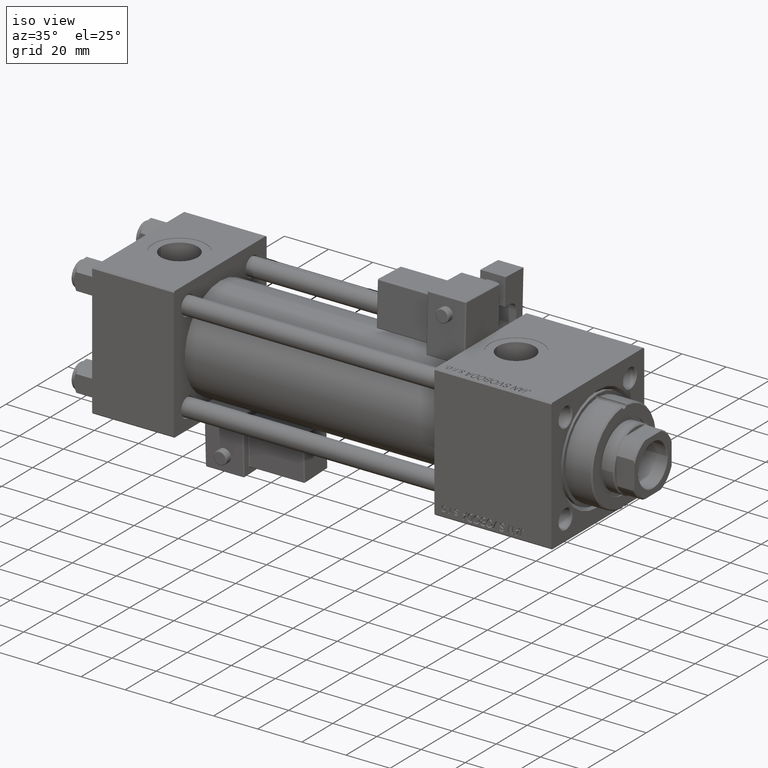
[diagram: clean part render]
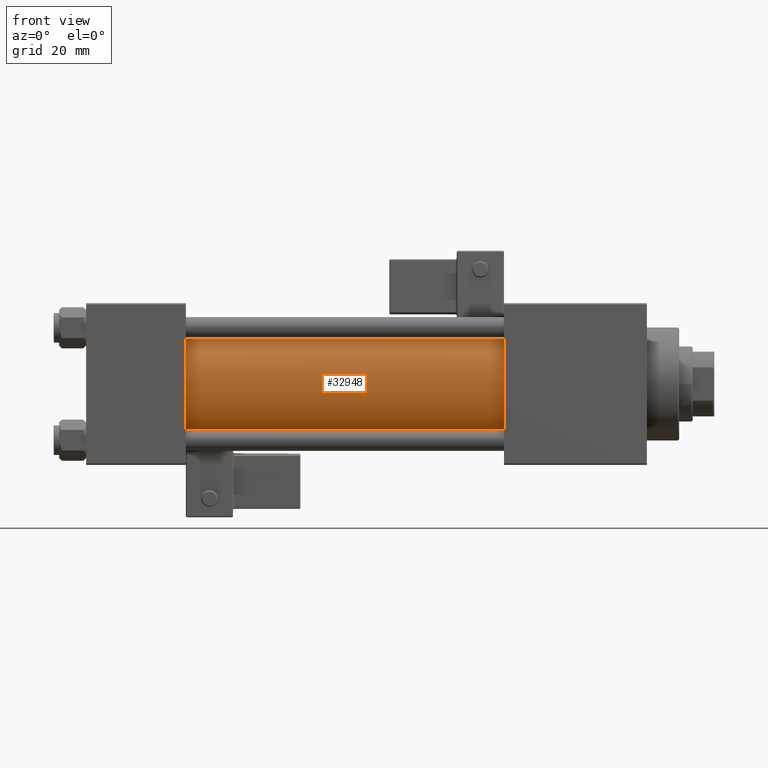
[diagram: tour spotlight — one face highlighted and labeled with its STEP entity id]
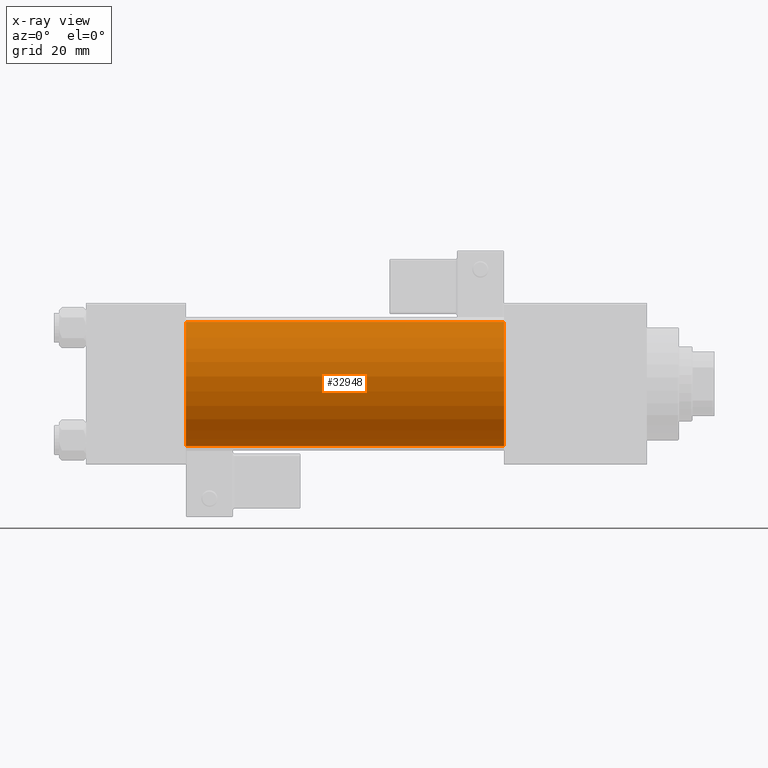
[diagram: x-ray of the same camera — body ghosted, this tour face saturated]
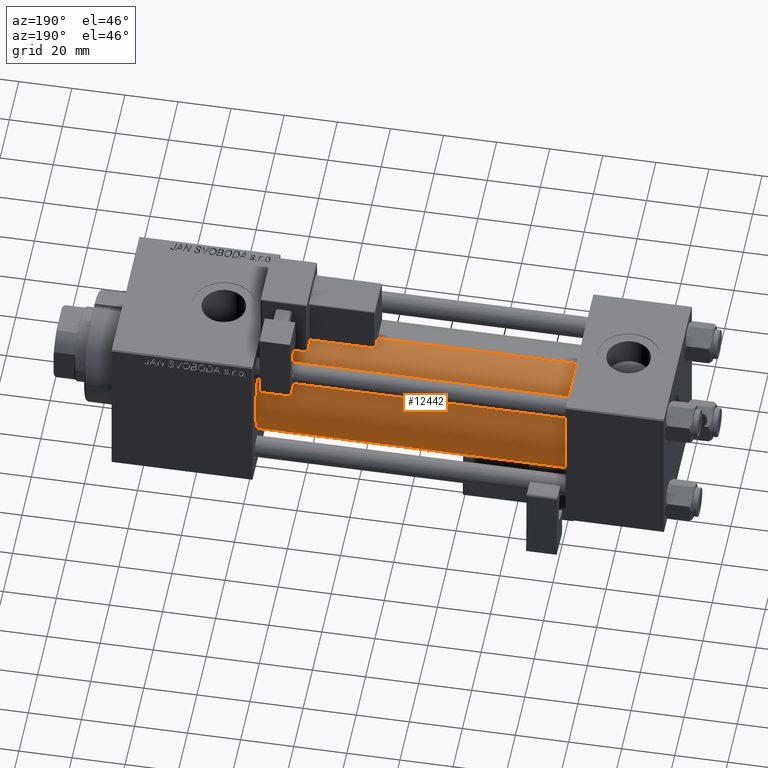
[diagram: tour spotlight — one face highlighted and labeled with its STEP entity id]
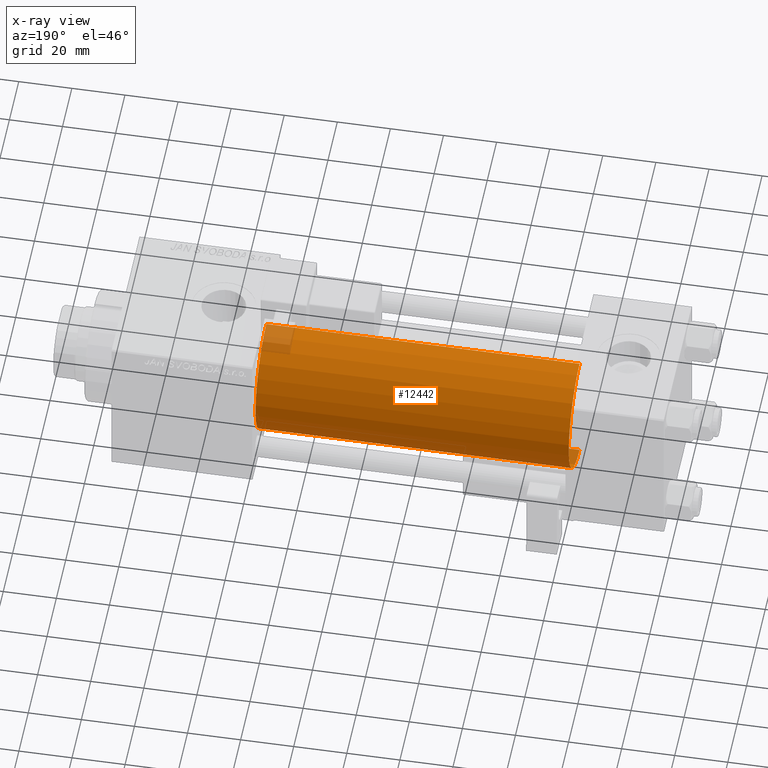
[diagram: x-ray of the same camera — body ghosted, this tour face saturated]
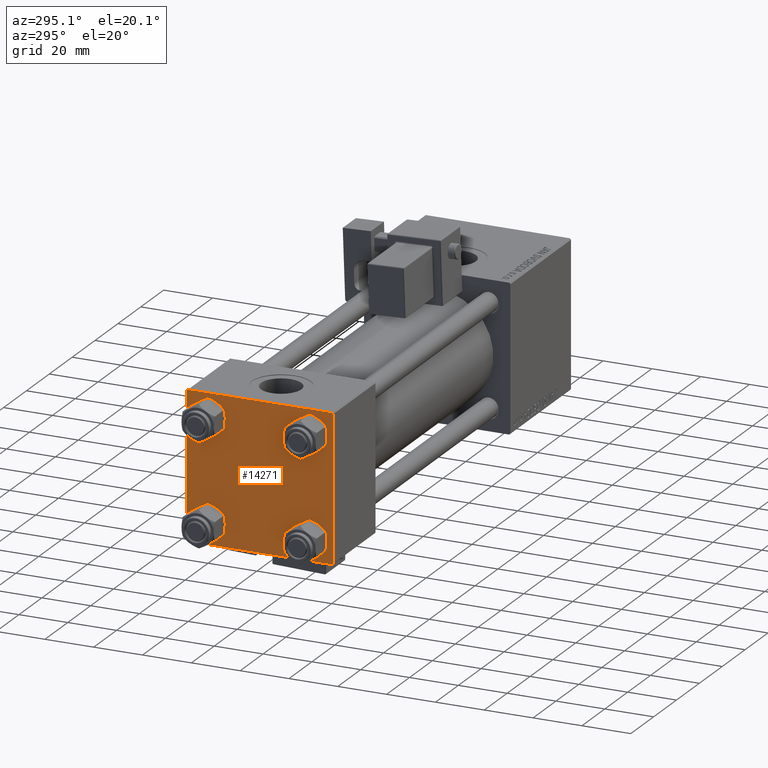
[diagram: tour spotlight — one face highlighted and labeled with its STEP entity id]
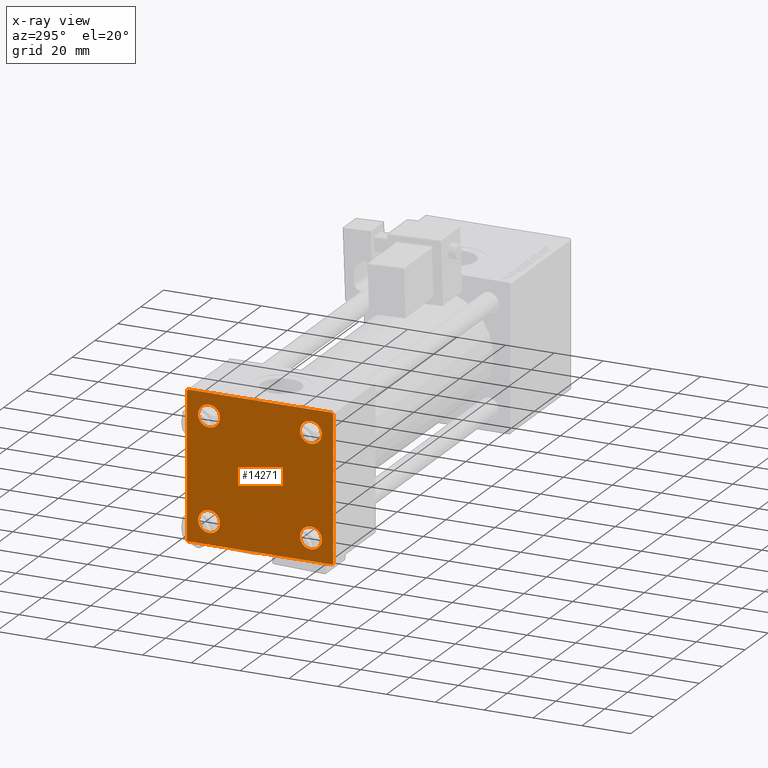
[diagram: x-ray of the same camera — body ghosted, this tour face saturated]
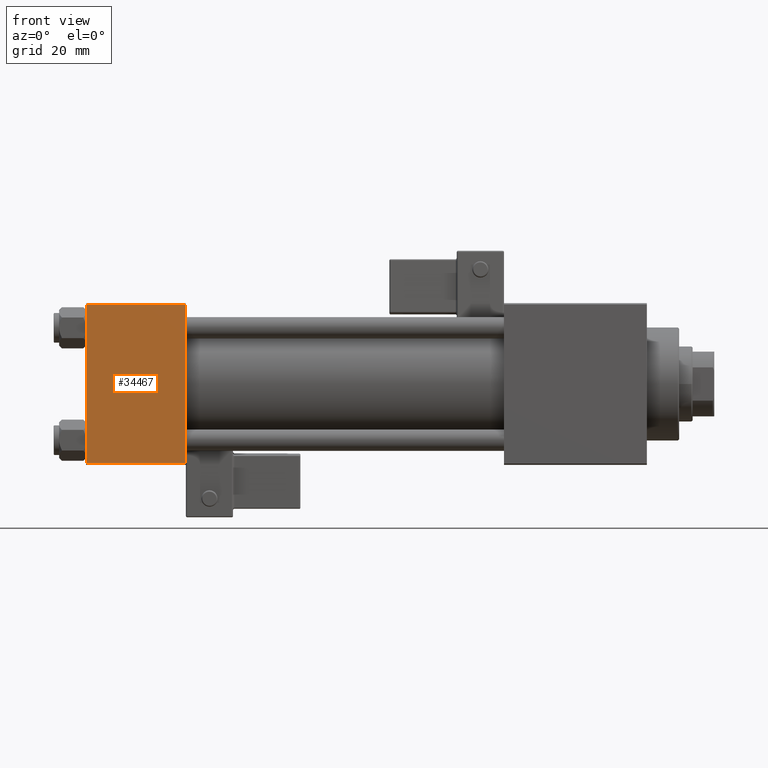
[diagram: tour spotlight — one face highlighted and labeled with its STEP entity id]
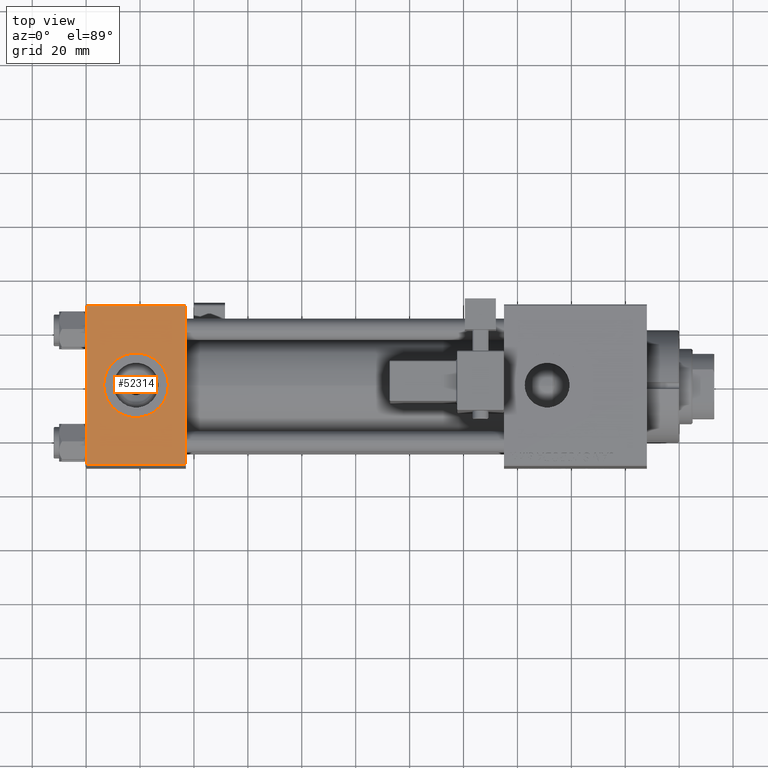
[diagram: tour spotlight — one face highlighted and labeled with its STEP entity id]
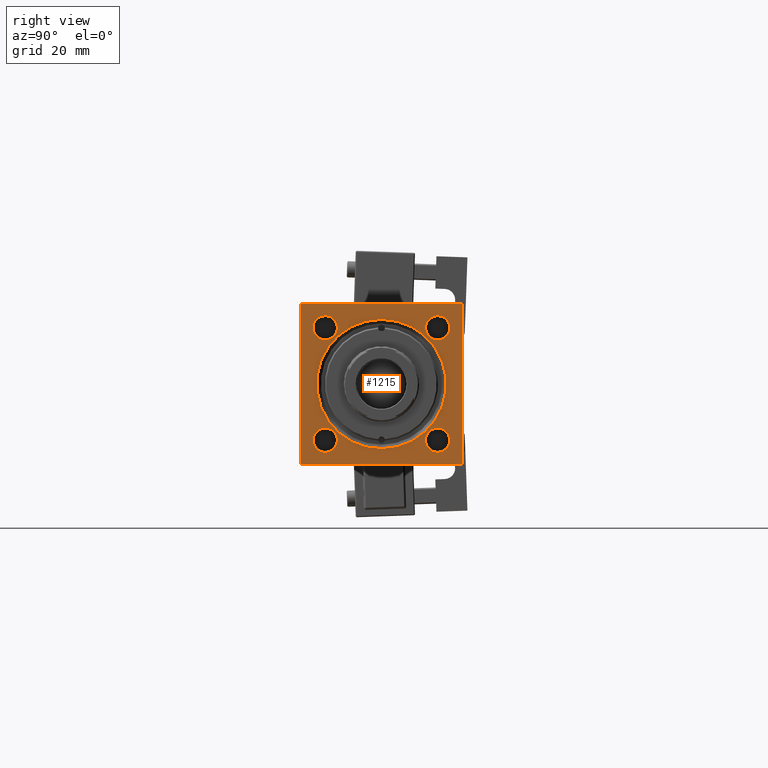
[diagram: tour spotlight — one face highlighted and labeled with its STEP entity id]
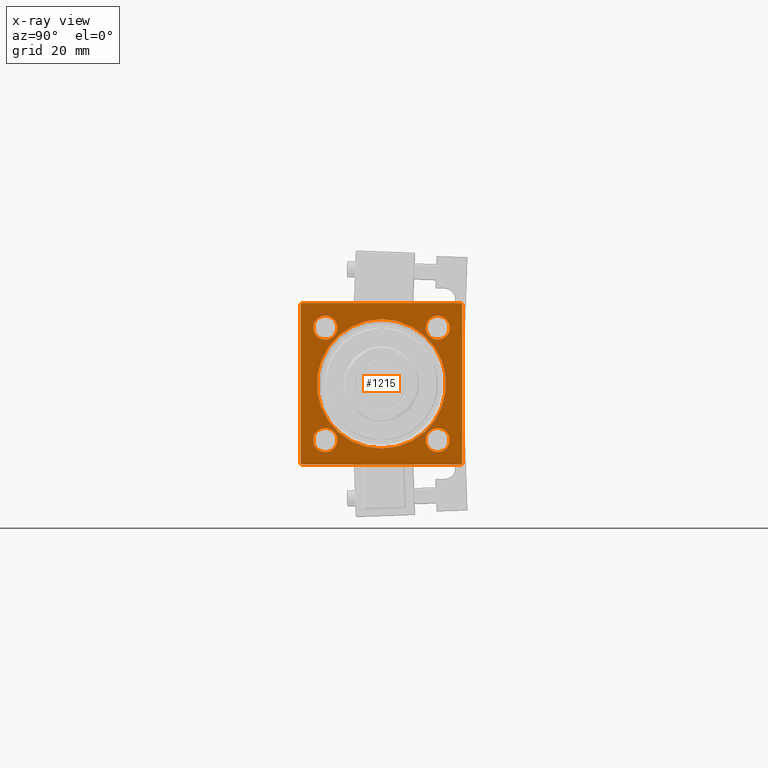
[diagram: x-ray of the same camera — body ghosted, this tour face saturated]
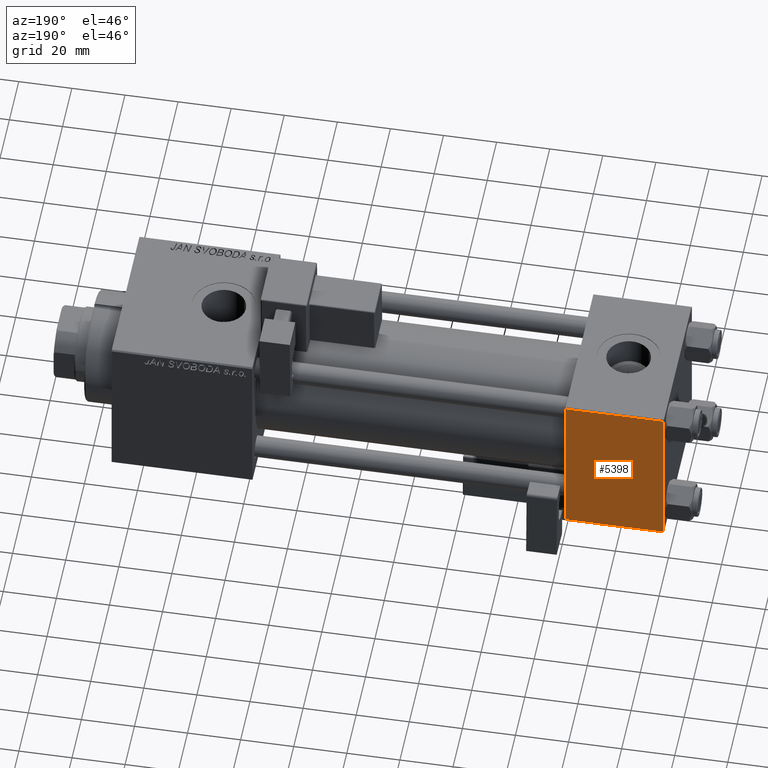
[diagram: tour spotlight — one face highlighted and labeled with its STEP entity id]
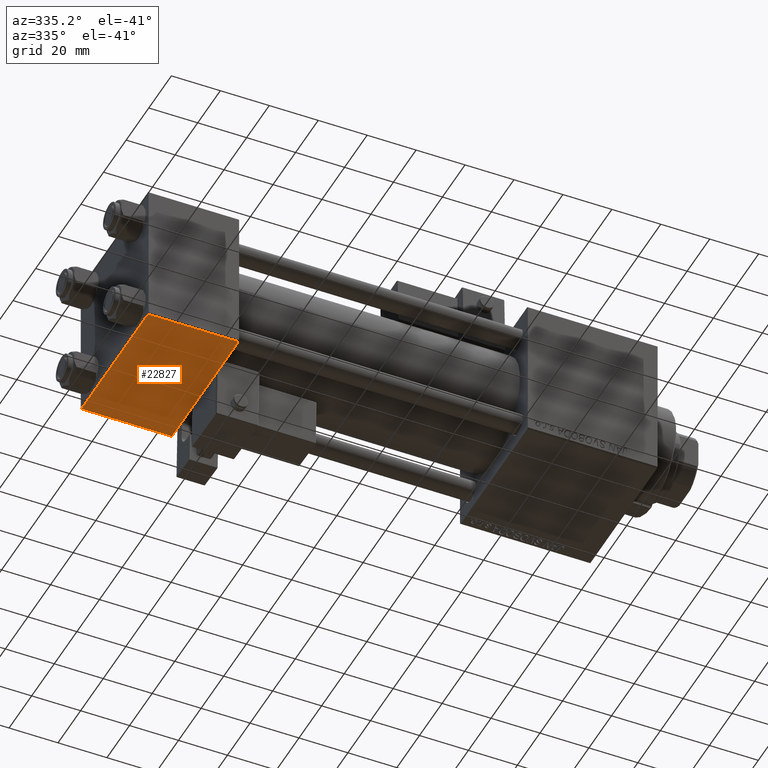
[diagram: tour spotlight — one face highlighted and labeled with its STEP entity id]
A machine part: a face-by-face anatomy tour. The part has 1341 B-rep faces; the first image is the clean iso view, then the 8 largest visible faces are spotlighted one at a time (largest first), each with its STEP entity span.

Face 1 — front view, entity #32948. An x-ray twin of the same camera follows (body ghosted, this face saturated) — the face is partly hidden behind the body. In plain terms, the highlighted cylindrical surface (partial cylindrical patch) has radius 23 mm, axis along (-1, -0, -0).
Definition (entity closure, byte-faithful):
#477 = CIRCLE ( 'NONE', #30874, 23.00000000000000000 ) ;
#1869 = EDGE_CURVE ( 'NONE', #48475, #43932, #477, .T. ) ;
#2634 = DIRECTION ( 'NONE',  ( -1.000000000000000000, -0.000000000000000000, -0.000000000000000000 ) ) ;
#3577 = CARTESIAN_POINT ( 'NONE',  ( 155.0000000000000000, -2.602085213965210642E-15, 0.000000000000000000 ) ) ;
#3728 = VERTEX_POINT ( 'NONE', #25554 ) ;
#7401 = LINE ( 'NONE', #10938, #35405 ) ;
#7868 = CIRCLE ( 'NONE', #41705, 23.00000000000000000 ) ;
#9134 = CARTESIAN_POINT ( 'NONE',  ( 155.0000000000000000, -2.602085213965210642E-15, 0.000000000000000000 ) ) ;
#10767 = EDGE_CURVE ( 'NONE', #48475, #3728, #7401, .T. ) ;
#10938 = CARTESIAN_POINT ( 'NONE',  ( 155.0000000000000000, -2.602085213965210642E-15, 23.00000000000000000 ) ) ;
#15333 = CARTESIAN_POINT ( 'NONE',  ( 155.0000000000000000, 2.146024240737016609E-16, -23.00000000000000000 ) ) ;
#15524 = DIRECTION ( 'NONE',  ( -1.000000000000000000, -0.000000000000000000, -0.000000000000000000 ) ) ;
#16310 = CARTESIAN_POINT ( 'NONE',  ( 37.00000000000000711, -2.602085213965210642E-15, 0.000000000000000000 ) ) ;
#17137 = ORIENTED_EDGE ( 'NONE', *, *, #10767, .T. ) ;
#19210 = LINE ( 'NONE', #47785, #53338 ) ;
#19356 = DIRECTION ( 'NONE',  ( -1.000000000000000000, -0.000000000000000000, -0.000000000000000000 ) ) ;
#19872 = DIRECTION ( 'NONE',  ( 0.000000000000000000, 0.000000000000000000, 1.000000000000000000 ) ) ;
#20888 = ORIENTED_EDGE ( 'NONE', *, *, #49720, .T. ) ;
#23596 = EDGE_LOOP ( 'NONE', ( #24928, #43247, #17137, #20888 ) ) ;
#24928 = ORIENTED_EDGE ( 'NONE', *, *, #33194, .F. ) ;
#25554 = CARTESIAN_POINT ( 'NONE',  ( 37.00000000000000711, -2.602085213965210642E-15, 23.00000000000000000 ) ) ;
#30874 = AXIS2_PLACEMENT_3D ( 'NONE', #9134, #50462, #38503 ) ;
#32948 = ADVANCED_FACE ( 'NONE', ( #43293 ), #37291, .T. ) ;
#33194 = EDGE_CURVE ( 'NONE', #43932, #36819, #19210, .T. ) ;
#35405 = VECTOR ( 'NONE', #19356, 1000.000000000000000 ) ;
#36819 = VERTEX_POINT ( 'NONE', #43658 ) ;
#36999 = DIRECTION ( 'NONE',  ( 0.000000000000000000, 0.000000000000000000, 1.000000000000000000 ) ) ;
#37291 = CYLINDRICAL_SURFACE ( 'NONE', #38599, 23.00000000000000000 ) ;
#38503 = DIRECTION ( 'NONE',  ( 0.000000000000000000, 0.000000000000000000, -1.000000000000000000 ) ) ;
#38599 = AXIS2_PLACEMENT_3D ( 'NONE', #3577, #15524, #19872 ) ;
#41705 = AXIS2_PLACEMENT_3D ( 'NONE', #16310, #48956, #36999 ) ;
#43247 = ORIENTED_EDGE ( 'NONE', *, *, #1869, .F. ) ;
#43293 = FACE_OUTER_BOUND ( 'NONE', #23596, .T. ) ;
#43658 = CARTESIAN_POINT ( 'NONE',  ( 37.00000000000000711, 2.146024240737016609E-16, -23.00000000000000000 ) ) ;
#43932 = VERTEX_POINT ( 'NONE', #15333 ) ;
#47785 = CARTESIAN_POINT ( 'NONE',  ( 155.0000000000000000, 2.146024240737016609E-16, -23.00000000000000000 ) ) ;
#48475 = VERTEX_POINT ( 'NONE', #53659 ) ;
#48956 = DIRECTION ( 'NONE',  ( 1.000000000000000000, -0.000000000000000000, 0.000000000000000000 ) ) ;
#49720 = EDGE_CURVE ( 'NONE', #3728, #36819, #7868, .T. ) ;
#50462 = DIRECTION ( 'NONE',  ( 1.000000000000000000, 0.000000000000000000, 0.000000000000000000 ) ) ;
#53338 = VECTOR ( 'NONE', #2634, 1000.000000000000000 ) ;
#53659 = CARTESIAN_POINT ( 'NONE',  ( 155.0000000000000000, -2.602085213965210642E-15, 23.00000000000000000 ) ) ;

Face 2 — auxiliary view, entity #12442. An x-ray twin of the same camera follows (body ghosted, this face saturated) — the face is partly hidden behind the body. In plain terms, the highlighted cylindrical surface (partial cylindrical patch) has radius 23 mm, axis along (-1, -0, -0).
Definition (entity closure, byte-faithful):
#2634 = DIRECTION ( 'NONE',  ( -1.000000000000000000, -0.000000000000000000, -0.000000000000000000 ) ) ;
#3728 = VERTEX_POINT ( 'NONE', #25554 ) ;
#7401 = LINE ( 'NONE', #10938, #35405 ) ;
#8824 = DIRECTION ( 'NONE',  ( 0.000000000000000000, 0.000000000000000000, 1.000000000000000000 ) ) ;
#10767 = EDGE_CURVE ( 'NONE', #48475, #3728, #7401, .T. ) ;
#10938 = CARTESIAN_POINT ( 'NONE',  ( 155.0000000000000000, -2.602085213965210642E-15, 23.00000000000000000 ) ) ;
#11543 = CARTESIAN_POINT ( 'NONE',  ( 155.0000000000000000, -2.602085213965210642E-15, 0.000000000000000000 ) ) ;
#11969 = ORIENTED_EDGE ( 'NONE', *, *, #28719, .F. ) ;
#12442 = ADVANCED_FACE ( 'NONE', ( #15339 ), #19954, .T. ) ;
#15108 = ORIENTED_EDGE ( 'NONE', *, *, #33194, .T. ) ;
#15333 = CARTESIAN_POINT ( 'NONE',  ( 155.0000000000000000, 2.146024240737016609E-16, -23.00000000000000000 ) ) ;
#15339 = FACE_OUTER_BOUND ( 'NONE', #48219, .T. ) ;
#15449 = EDGE_CURVE ( 'NONE', #36819, #3728, #31209, .T. ) ;
#16401 = DIRECTION ( 'NONE',  ( 0.000000000000000000, 0.000000000000000000, -1.000000000000000000 ) ) ;
#19210 = LINE ( 'NONE', #47785, #53338 ) ;
#19356 = DIRECTION ( 'NONE',  ( -1.000000000000000000, -0.000000000000000000, -0.000000000000000000 ) ) ;
#19954 = CYLINDRICAL_SURFACE ( 'NONE', #51101, 23.00000000000000000 ) ;
#22025 = ORIENTED_EDGE ( 'NONE', *, *, #10767, .F. ) ;
#24681 = CIRCLE ( 'NONE', #51588, 23.00000000000000000 ) ;
#25554 = CARTESIAN_POINT ( 'NONE',  ( 37.00000000000000711, -2.602085213965210642E-15, 23.00000000000000000 ) ) ;
#28719 = EDGE_CURVE ( 'NONE', #43932, #48475, #24681, .T. ) ;
#31209 = CIRCLE ( 'NONE', #52064, 23.00000000000000000 ) ;
#31711 = ORIENTED_EDGE ( 'NONE', *, *, #15449, .T. ) ;
#33194 = EDGE_CURVE ( 'NONE', #43932, #36819, #19210, .T. ) ;
#35094 = DIRECTION ( 'NONE',  ( 1.000000000000000000, -0.000000000000000000, 0.000000000000000000 ) ) ;
#35405 = VECTOR ( 'NONE', #19356, 1000.000000000000000 ) ;
#36819 = VERTEX_POINT ( 'NONE', #43658 ) ;
#36827 = CARTESIAN_POINT ( 'NONE',  ( 155.0000000000000000, -2.602085213965210642E-15, 0.000000000000000000 ) ) ;
#37092 = DIRECTION ( 'NONE',  ( 1.000000000000000000, 0.000000000000000000, 0.000000000000000000 ) ) ;
#43658 = CARTESIAN_POINT ( 'NONE',  ( 37.00000000000000711, 2.146024240737016609E-16, -23.00000000000000000 ) ) ;
#43932 = VERTEX_POINT ( 'NONE', #15333 ) ;
#45809 = CARTESIAN_POINT ( 'NONE',  ( 37.00000000000000711, -2.602085213965210642E-15, 0.000000000000000000 ) ) ;
#47785 = CARTESIAN_POINT ( 'NONE',  ( 155.0000000000000000, 2.146024240737016609E-16, -23.00000000000000000 ) ) ;
#47996 = DIRECTION ( 'NONE',  ( 0.000000000000000000, 0.000000000000000000, 1.000000000000000000 ) ) ;
#48219 = EDGE_LOOP ( 'NONE', ( #11969, #15108, #31711, #22025 ) ) ;
#48475 = VERTEX_POINT ( 'NONE', #53659 ) ;
#51101 = AXIS2_PLACEMENT_3D ( 'NONE', #11543, #52347, #47996 ) ;
#51588 = AXIS2_PLACEMENT_3D ( 'NONE', #36827, #37092, #16401 ) ;
#52064 = AXIS2_PLACEMENT_3D ( 'NONE', #45809, #35094, #8824 ) ;
#52347 = DIRECTION ( 'NONE',  ( -1.000000000000000000, -0.000000000000000000, -0.000000000000000000 ) ) ;
#53338 = VECTOR ( 'NONE', #2634, 1000.000000000000000 ) ;
#53659 = CARTESIAN_POINT ( 'NONE',  ( 155.0000000000000000, -2.602085213965210642E-15, 23.00000000000000000 ) ) ;

Face 3 — auxiliary view, entity #14271. An x-ray twin of the same camera follows (body ghosted, this face saturated) — the face is partly hidden behind the body. In plain terms, the highlighted planar face has unit normal (-1, 0, 0).
Definition (entity closure, byte-faithful):
#172 = LINE ( 'NONE', #439, #30890 ) ;
#439 = CARTESIAN_POINT ( 'NONE',  ( 0.000000000000000000, -29.75000000000001066, -29.75000000000001066 ) ) ;
#467 = EDGE_CURVE ( 'NONE', #36690, #19186, #9039, .T. ) ;
#692 = LINE ( 'NONE', #46127, #30483 ) ;
#1161 = VERTEX_POINT ( 'NONE', #4503 ) ;
#1415 = ORIENTED_EDGE ( 'NONE', *, *, #43634, .T. ) ;
#1784 = CARTESIAN_POINT ( 'NONE',  ( 0.000000000000000000, -29.49999999999998579, 29.99999999999999289 ) ) ;
#1808 = VERTEX_POINT ( 'NONE', #15380 ) ;
#2245 = DIRECTION ( 'NONE',  ( 1.000000000000000000, -0.000000000000000000, 0.000000000000000000 ) ) ;
#2268 = ORIENTED_EDGE ( 'NONE', *, *, #19548, .T. ) ;
#2605 = VECTOR ( 'NONE', #7754, 1000.000000000000114 ) ;
#2944 = ORIENTED_EDGE ( 'NONE', *, *, #49935, .T. ) ;
#3197 = VECTOR ( 'NONE', #34207, 1000.000000000000000 ) ;
#3942 = VECTOR ( 'NONE', #27418, 1000.000000000000114 ) ;
#4197 = CARTESIAN_POINT ( 'NONE',  ( 0.000000000000000000, 29.99999999999999289, 29.50000000000000000 ) ) ;
#4503 = CARTESIAN_POINT ( 'NONE',  ( 0.000000000000000000, -30.00000000000000000, -29.50000000000001776 ) ) ;
#4848 = EDGE_CURVE ( 'NONE', #11709, #13324, #7300, .T. ) ;
#4955 = ORIENTED_EDGE ( 'NONE', *, *, #7833, .T. ) ;
#6226 = FACE_BOUND ( 'NONE', #28078, .T. ) ;
#6483 = CARTESIAN_POINT ( 'NONE',  ( 0.000000000000000000, 0.000000000000000000, 0.000000000000000000 ) ) ;
#7022 = CARTESIAN_POINT ( 'NONE',  ( -0.000000000000000000, -29.74999999999999645, 29.74999999999999645 ) ) ;
#7300 = LINE ( 'NONE', #7022, #3942 ) ;
#7506 = DIRECTION ( 'NONE',  ( 1.000000000000000000, -0.000000000000000000, 0.000000000000000000 ) ) ;
#7754 = DIRECTION ( 'NONE',  ( 0.000000000000000000, 0.7071067811865474617, -0.7071067811865474617 ) ) ;
#7833 = EDGE_CURVE ( 'NONE', #36309, #36690, #8659, .T. ) ;
#8257 = VECTOR ( 'NONE', #46561, 999.9999999999998863 ) ;
#8486 = CARTESIAN_POINT ( 'NONE',  ( 0.000000000000000000, 20.84999999999999787, -20.85000000000000142 ) ) ;
#8659 = LINE ( 'NONE', #17609, #3197 ) ;
#9039 = LINE ( 'NONE', #17445, #8257 ) ;
#10822 = EDGE_CURVE ( 'NONE', #26495, #22233, #44971, .T. ) ;
#10851 = EDGE_CURVE ( 'NONE', #14777, #28040, #29345, .T. ) ;
#11203 = CARTESIAN_POINT ( 'NONE',  ( 0.000000000000000000, 20.84999999999999787, -20.85000000000000142 ) ) ;
#11305 = CIRCLE ( 'NONE', #18247, 4.500000000000017764 ) ;
#11327 = DIRECTION ( 'NONE',  ( 1.000000000000000000, -0.000000000000000000, 0.000000000000000000 ) ) ;
#11709 = VERTEX_POINT ( 'NONE', #14154 ) ;
#12525 = ORIENTED_EDGE ( 'NONE', *, *, #12810, .T. ) ;
#12532 = EDGE_LOOP ( 'NONE', ( #48579, #34796 ) ) ;
#12617 = VERTEX_POINT ( 'NONE', #22641 ) ;
#12810 = EDGE_CURVE ( 'NONE', #28040, #14777, #35448, .T. ) ;
#13078 = DIRECTION ( 'NONE',  ( 1.000000000000000000, -0.000000000000000000, 0.000000000000000000 ) ) ;
#13324 = VERTEX_POINT ( 'NONE', #1784 ) ;
#13860 = EDGE_LOOP ( 'NONE', ( #14463, #12525 ) ) ;
#14154 = CARTESIAN_POINT ( 'NONE',  ( 0.000000000000000000, -30.00000000000000000, 29.49999999999999289 ) ) ;
#14271 = ADVANCED_FACE ( 'NONE', ( #43471, #14354, #19514, #6226, #22794 ), #47551, .T. ) ;
#14354 = FACE_BOUND ( 'NONE', #12532, .T. ) ;
#14403 = VECTOR ( 'NONE', #40988, 1000.000000000000000 ) ;
#14463 = ORIENTED_EDGE ( 'NONE', *, *, #10851, .T. ) ;
#14593 = DIRECTION ( 'NONE',  ( 0.000000000000000000, 0.000000000000000000, 1.000000000000000000 ) ) ;
#14777 = VERTEX_POINT ( 'NONE', #42744 ) ;
#15380 = CARTESIAN_POINT ( 'NONE',  ( 0.000000000000000000, -20.84999999999999076, -25.35000000000002274 ) ) ;
#15724 = CARTESIAN_POINT ( 'NONE',  ( 0.000000000000000000, 20.84999999999999787, -25.35000000000001918 ) ) ;
#16120 = ORIENTED_EDGE ( 'NONE', *, *, #16471, .T. ) ;
#16355 = CARTESIAN_POINT ( 'NONE',  ( 0.000000000000000000, -20.84999999999999076, 20.85000000000000497 ) ) ;
#16471 = EDGE_CURVE ( 'NONE', #22841, #36309, #41729, .T. ) ;
#16989 = EDGE_CURVE ( 'NONE', #19186, #23930, #30752, .T. ) ;
#17078 = DIRECTION ( 'NONE',  ( 1.000000000000000000, -0.000000000000000000, 0.000000000000000000 ) ) ;
#17156 = CARTESIAN_POINT ( 'NONE',  ( 0.000000000000000000, -20.84999999999999076, 16.34999999999998721 ) ) ;
#17200 = AXIS2_PLACEMENT_3D ( 'NONE', #8486, #50078, #25603 ) ;
#17337 = VERTEX_POINT ( 'NONE', #18909 ) ;
#17445 = CARTESIAN_POINT ( 'NONE',  ( 0.000000000000000000, 29.74999999999957723, -29.75000000000040501 ) ) ;
#17609 = CARTESIAN_POINT ( 'NONE',  ( 0.000000000000000000, 29.99999999999999289, 30.00000000000000000 ) ) ;
#18247 = AXIS2_PLACEMENT_3D ( 'NONE', #36942, #28768, #53799 ) ;
#18909 = CARTESIAN_POINT ( 'NONE',  ( 0.000000000000000000, -20.84999999999999076, -16.34999999999998721 ) ) ;
#19186 = VERTEX_POINT ( 'NONE', #33386 ) ;
#19514 = FACE_BOUND ( 'NONE', #13860, .T. ) ;
#19548 = EDGE_CURVE ( 'NONE', #12617, #52154, #52103, .T. ) ;
#20849 = CARTESIAN_POINT ( 'NONE',  ( 0.000000000000000000, 29.99999999999999289, 30.00000000000000000 ) ) ;
#20867 = ORIENTED_EDGE ( 'NONE', *, *, #10822, .T. ) ;
#21498 = ORIENTED_EDGE ( 'NONE', *, *, #467, .T. ) ;
#21515 = DIRECTION ( 'NONE',  ( 0.000000000000000000, 0.000000000000000000, 1.000000000000000000 ) ) ;
#21967 = CARTESIAN_POINT ( 'NONE',  ( 0.000000000000000000, -20.84999999999999076, -20.85000000000000497 ) ) ;
#22233 = VERTEX_POINT ( 'NONE', #17156 ) ;
#22641 = CARTESIAN_POINT ( 'NONE',  ( 0.000000000000000000, 20.84999999999999787, 16.34999999999998366 ) ) ;
#22794 = FACE_OUTER_BOUND ( 'NONE', #44522, .T. ) ;
#22841 = VERTEX_POINT ( 'NONE', #53099 ) ;
#22981 = ORIENTED_EDGE ( 'NONE', *, *, #51196, .F. ) ;
#23324 = DIRECTION ( 'NONE',  ( -0.000000000000000000, 0.000000000000000000, 1.000000000000000000 ) ) ;
#23577 = CARTESIAN_POINT ( 'NONE',  ( 0.000000000000000000, 29.99999999999999289, -29.50000000000000000 ) ) ;
#23930 = VERTEX_POINT ( 'NONE', #33502 ) ;
#25199 = DIRECTION ( 'NONE',  ( 0.000000000000000000, -0.7071067811865474617, 0.7071067811865474617 ) ) ;
#25603 = DIRECTION ( 'NONE',  ( 0.000000000000000000, 0.000000000000000000, 1.000000000000000000 ) ) ;
#26495 = VERTEX_POINT ( 'NONE', #38121 ) ;
#26797 = EDGE_LOOP ( 'NONE', ( #20867, #2944 ) ) ;
#27418 = DIRECTION ( 'NONE',  ( -0.000000000000000000, 0.7071067811865474617, 0.7071067811865474617 ) ) ;
#27765 = AXIS2_PLACEMENT_3D ( 'NONE', #33758, #13078, #43249 ) ;
#27803 = CIRCLE ( 'NONE', #27765, 4.500000000000017764 ) ;
#28040 = VERTEX_POINT ( 'NONE', #15724 ) ;
#28078 = EDGE_LOOP ( 'NONE', ( #1415, #2268 ) ) ;
#28440 = DIRECTION ( 'NONE',  ( 0.000000000000000000, 0.000000000000000000, 1.000000000000000000 ) ) ;
#28768 = DIRECTION ( 'NONE',  ( 1.000000000000000000, -0.000000000000000000, 0.000000000000000000 ) ) ;
#29345 = CIRCLE ( 'NONE', #17200, 4.500000000000017764 ) ;
#29523 = DIRECTION ( 'NONE',  ( 0.000000000000000000, 0.000000000000000000, -1.000000000000000000 ) ) ;
#30483 = VECTOR ( 'NONE', #29523, 1000.000000000000000 ) ;
#30752 = LINE ( 'NONE', #39462, #53000 ) ;
#30890 = VECTOR ( 'NONE', #25199, 1000.000000000000114 ) ;
#31768 = EDGE_CURVE ( 'NONE', #1808, #17337, #35083, .T. ) ;
#32953 = DIRECTION ( 'NONE',  ( 1.000000000000000000, -0.000000000000000000, 0.000000000000000000 ) ) ;
#33386 = CARTESIAN_POINT ( 'NONE',  ( 0.000000000000000000, 29.49999999999997868, -30.00000000000000000 ) ) ;
#33502 = CARTESIAN_POINT ( 'NONE',  ( 0.000000000000000000, -29.50000000000000000, -30.00000000000000711 ) ) ;
#33758 = CARTESIAN_POINT ( 'NONE',  ( 0.000000000000000000, -20.84999999999999076, -20.85000000000000497 ) ) ;
#34207 = DIRECTION ( 'NONE',  ( 0.000000000000000000, 0.000000000000000000, -1.000000000000000000 ) ) ;
#34752 = AXIS2_PLACEMENT_3D ( 'NONE', #41215, #7506, #28440 ) ;
#34796 = ORIENTED_EDGE ( 'NONE', *, *, #31768, .T. ) ;
#35083 = CIRCLE ( 'NONE', #36809, 4.500000000000017764 ) ;
#35311 = DIRECTION ( 'NONE',  ( -1.000000000000000000, 0.000000000000000000, -0.000000000000000000 ) ) ;
#35448 = CIRCLE ( 'NONE', #38955, 4.500000000000017764 ) ;
#35887 = EDGE_CURVE ( 'NONE', #23930, #1161, #172, .T. ) ;
#36309 = VERTEX_POINT ( 'NONE', #4197 ) ;
#36690 = VERTEX_POINT ( 'NONE', #23577 ) ;
#36760 = EDGE_CURVE ( 'NONE', #22841, #13324, #45611, .T. ) ;
#36809 = AXIS2_PLACEMENT_3D ( 'NONE', #21967, #17078, #51068 ) ;
#36942 = CARTESIAN_POINT ( 'NONE',  ( 0.000000000000000000, -20.84999999999999076, 20.85000000000000497 ) ) ;
#38121 = CARTESIAN_POINT ( 'NONE',  ( 0.000000000000000000, -20.84999999999999076, 25.35000000000002274 ) ) ;
#38908 = AXIS2_PLACEMENT_3D ( 'NONE', #16355, #32953, #21515 ) ;
#38955 = AXIS2_PLACEMENT_3D ( 'NONE', #11203, #2245, #39510 ) ;
#39006 = AXIS2_PLACEMENT_3D ( 'NONE', #39633, #11327, #14593 ) ;
#39462 = CARTESIAN_POINT ( 'NONE',  ( 0.000000000000000000, 29.99999999999999289, -30.00000000000000000 ) ) ;
#39510 = DIRECTION ( 'NONE',  ( 0.000000000000000000, 0.000000000000000000, 1.000000000000000000 ) ) ;
#39633 = CARTESIAN_POINT ( 'NONE',  ( 0.000000000000000000, 20.84999999999999787, 20.85000000000000142 ) ) ;
#40494 = ORIENTED_EDGE ( 'NONE', *, *, #35887, .T. ) ;
#40988 = DIRECTION ( 'NONE',  ( 0.000000000000000000, -1.000000000000000000, -1.156482317317871725E-16 ) ) ;
#41215 = CARTESIAN_POINT ( 'NONE',  ( 0.000000000000000000, 20.84999999999999787, 20.85000000000000142 ) ) ;
#41729 = LINE ( 'NONE', #53712, #2605 ) ;
#42094 = ORIENTED_EDGE ( 'NONE', *, *, #16989, .T. ) ;
#42495 = CIRCLE ( 'NONE', #39006, 4.500000000000017764 ) ;
#42744 = CARTESIAN_POINT ( 'NONE',  ( 0.000000000000000000, 20.84999999999999787, -16.34999999999998366 ) ) ;
#42823 = ORIENTED_EDGE ( 'NONE', *, *, #4848, .T. ) ;
#43227 = ORIENTED_EDGE ( 'NONE', *, *, #36760, .F. ) ;
#43249 = DIRECTION ( 'NONE',  ( 0.000000000000000000, 0.000000000000000000, 1.000000000000000000 ) ) ;
#43471 = FACE_BOUND ( 'NONE', #26797, .T. ) ;
#43634 = EDGE_CURVE ( 'NONE', #52154, #12617, #42495, .T. ) ;
#44522 = EDGE_LOOP ( 'NONE', ( #4955, #21498, #42094, #40494, #22981, #42823, #43227, #16120 ) ) ;
#44971 = CIRCLE ( 'NONE', #38908, 4.500000000000017764 ) ;
#45492 = EDGE_CURVE ( 'NONE', #17337, #1808, #27803, .T. ) ;
#45611 = LINE ( 'NONE', #20849, #14403 ) ;
#46127 = CARTESIAN_POINT ( 'NONE',  ( 0.000000000000000000, -30.00000000000000000, 29.99999999999999289 ) ) ;
#46561 = DIRECTION ( 'NONE',  ( -0.000000000000000000, -0.7071067811865574537, -0.7071067811865376918 ) ) ;
#47551 = PLANE ( 'NONE',  #48524 ) ;
#48524 = AXIS2_PLACEMENT_3D ( 'NONE', #6483, #35311, #23324 ) ;
#48579 = ORIENTED_EDGE ( 'NONE', *, *, #45492, .T. ) ;
#49935 = EDGE_CURVE ( 'NONE', #22233, #26495, #11305, .T. ) ;
#50078 = DIRECTION ( 'NONE',  ( 1.000000000000000000, -0.000000000000000000, 0.000000000000000000 ) ) ;
#51068 = DIRECTION ( 'NONE',  ( 0.000000000000000000, 0.000000000000000000, 1.000000000000000000 ) ) ;
#51157 = DIRECTION ( 'NONE',  ( 0.000000000000000000, -1.000000000000000000, -1.156482317317871725E-16 ) ) ;
#51196 = EDGE_CURVE ( 'NONE', #11709, #1161, #692, .T. ) ;
#52103 = CIRCLE ( 'NONE', #34752, 4.500000000000017764 ) ;
#52154 = VERTEX_POINT ( 'NONE', #52827 ) ;
#52827 = CARTESIAN_POINT ( 'NONE',  ( 0.000000000000000000, 20.84999999999999787, 25.35000000000001918 ) ) ;
#53000 = VECTOR ( 'NONE', #51157, 1000.000000000000000 ) ;
#53099 = CARTESIAN_POINT ( 'NONE',  ( 0.000000000000000000, 29.49999999999999289, 30.00000000000000000 ) ) ;
#53712 = CARTESIAN_POINT ( 'NONE',  ( 0.000000000000000000, 29.74999999999999645, 29.74999999999999645 ) ) ;
#53799 = DIRECTION ( 'NONE',  ( 0.000000000000000000, 0.000000000000000000, 1.000000000000000000 ) ) ;

Face 4 — front view, entity #34467. In plain terms, the highlighted planar face has unit normal (0, 1, 0).
Definition (entity closure, byte-faithful):
#692 = LINE ( 'NONE', #46127, #30483 ) ;
#1161 = VERTEX_POINT ( 'NONE', #4503 ) ;
#2644 = FACE_OUTER_BOUND ( 'NONE', #7985, .T. ) ;
#3257 = VERTEX_POINT ( 'NONE', #8468 ) ;
#3528 = ORIENTED_EDGE ( 'NONE', *, *, #5610, .T. ) ;
#4503 = CARTESIAN_POINT ( 'NONE',  ( 0.000000000000000000, -30.00000000000000000, -29.50000000000001776 ) ) ;
#5610 = EDGE_CURVE ( 'NONE', #52963, #11709, #34065, .T. ) ;
#7985 = EDGE_LOOP ( 'NONE', ( #28536, #42183, #44781, #3528 ) ) ;
#8468 = CARTESIAN_POINT ( 'NONE',  ( 37.00000000000000000, -30.00000000000000000, -29.50000000000001776 ) ) ;
#9373 = CARTESIAN_POINT ( 'NONE',  ( 37.00000000000000000, -30.00000000000000000, 29.49999999999999289 ) ) ;
#10397 = LINE ( 'NONE', #47923, #50439 ) ;
#10540 = DIRECTION ( 'NONE',  ( 0.000000000000000000, -0.000000000000000000, 1.000000000000000000 ) ) ;
#11709 = VERTEX_POINT ( 'NONE', #14154 ) ;
#13880 = CARTESIAN_POINT ( 'NONE',  ( 37.00000000000000000, -30.00000000000000000, -29.50000000000001776 ) ) ;
#14154 = CARTESIAN_POINT ( 'NONE',  ( 0.000000000000000000, -30.00000000000000000, 29.49999999999999289 ) ) ;
#14601 = PLANE ( 'NONE',  #45576 ) ;
#18683 = CARTESIAN_POINT ( 'NONE',  ( 37.00000000000000000, -30.00000000000000000, 29.99999999999999289 ) ) ;
#20456 = VECTOR ( 'NONE', #25369, 1000.000000000000000 ) ;
#21975 = EDGE_CURVE ( 'NONE', #52963, #3257, #10397, .T. ) ;
#25369 = DIRECTION ( 'NONE',  ( -1.000000000000000000, 0.000000000000000000, 0.000000000000000000 ) ) ;
#28536 = ORIENTED_EDGE ( 'NONE', *, *, #51196, .T. ) ;
#29439 = CARTESIAN_POINT ( 'NONE',  ( 37.00000000000000000, -30.00000000000000000, 29.49999999999999289 ) ) ;
#29523 = DIRECTION ( 'NONE',  ( 0.000000000000000000, 0.000000000000000000, -1.000000000000000000 ) ) ;
#30483 = VECTOR ( 'NONE', #29523, 1000.000000000000000 ) ;
#34065 = LINE ( 'NONE', #29439, #20456 ) ;
#34467 = ADVANCED_FACE ( 'NONE', ( #2644 ), #14601, .F. ) ;
#34565 = LINE ( 'NONE', #13880, #44311 ) ;
#35358 = DIRECTION ( 'NONE',  ( 1.000000000000000000, 0.000000000000000000, 0.000000000000000000 ) ) ;
#35679 = DIRECTION ( 'NONE',  ( 0.000000000000000000, 0.000000000000000000, -1.000000000000000000 ) ) ;
#42183 = ORIENTED_EDGE ( 'NONE', *, *, #45559, .T. ) ;
#44311 = VECTOR ( 'NONE', #35358, 1000.000000000000000 ) ;
#44781 = ORIENTED_EDGE ( 'NONE', *, *, #21975, .F. ) ;
#45559 = EDGE_CURVE ( 'NONE', #1161, #3257, #34565, .T. ) ;
#45576 = AXIS2_PLACEMENT_3D ( 'NONE', #18683, #47796, #10540 ) ;
#46127 = CARTESIAN_POINT ( 'NONE',  ( 0.000000000000000000, -30.00000000000000000, 29.99999999999999289 ) ) ;
#47796 = DIRECTION ( 'NONE',  ( -0.000000000000000000, 1.000000000000000000, 0.000000000000000000 ) ) ;
#47923 = CARTESIAN_POINT ( 'NONE',  ( 37.00000000000000000, -30.00000000000000000, 29.99999999999999289 ) ) ;
#50439 = VECTOR ( 'NONE', #35679, 1000.000000000000000 ) ;
#51196 = EDGE_CURVE ( 'NONE', #11709, #1161, #692, .T. ) ;
#52963 = VERTEX_POINT ( 'NONE', #9373 ) ;

Face 5 — top view, entity #52314. In plain terms, the highlighted planar face has unit normal (0, 0, -1).
Definition (entity closure, byte-faithful):
#1061 = CARTESIAN_POINT ( 'NONE',  ( 30.50000000000000000, -3.469446951953614978E-15, 29.99999999999999645 ) ) ;
#1784 = CARTESIAN_POINT ( 'NONE',  ( 0.000000000000000000, -29.49999999999998579, 29.99999999999999289 ) ) ;
#2655 = ORIENTED_EDGE ( 'NONE', *, *, #36760, .T. ) ;
#2880 = EDGE_CURVE ( 'NONE', #13324, #50256, #11526, .T. ) ;
#3880 = DIRECTION ( 'NONE',  ( 0.000000000000000000, -1.000000000000000000, -1.156482317317871725E-16 ) ) ;
#5035 = ORIENTED_EDGE ( 'NONE', *, *, #2880, .T. ) ;
#5773 = CARTESIAN_POINT ( 'NONE',  ( 37.00000000000000000, -29.49999999999998579, 29.99999999999999289 ) ) ;
#6232 = AXIS2_PLACEMENT_3D ( 'NONE', #38124, #17168, #41918 ) ;
#6817 = DIRECTION ( 'NONE',  ( 1.000000000000000000, 0.000000000000000000, 0.000000000000000000 ) ) ;
#7632 = DIRECTION ( 'NONE',  ( 0.000000000000000000, 0.000000000000000000, 1.000000000000000000 ) ) ;
#8011 = CARTESIAN_POINT ( 'NONE',  ( 6.499999999999997335, -1.999870792976790833E-15, 29.99999999999999645 ) ) ;
#9995 = ORIENTED_EDGE ( 'NONE', *, *, #14875, .F. ) ;
#11526 = LINE ( 'NONE', #11798, #52620 ) ;
#11625 = CARTESIAN_POINT ( 'NONE',  ( 37.00000000000000000, 29.49999999999999289, 30.00000000000000000 ) ) ;
#11798 = CARTESIAN_POINT ( 'NONE',  ( 37.00000000000000000, -29.50000000000000000, 29.99999999999999289 ) ) ;
#13324 = VERTEX_POINT ( 'NONE', #1784 ) ;
#14403 = VECTOR ( 'NONE', #40988, 1000.000000000000000 ) ;
#14613 = LINE ( 'NONE', #48879, #15648 ) ;
#14654 = CIRCLE ( 'NONE', #25121, 12.00000000000000000 ) ;
#14875 = EDGE_CURVE ( 'NONE', #22557, #53675, #14654, .T. ) ;
#15648 = VECTOR ( 'NONE', #43999, 1000.000000000000000 ) ;
#16163 = VERTEX_POINT ( 'NONE', #11625 ) ;
#16826 = DIRECTION ( 'NONE',  ( 1.000000000000000000, 0.000000000000000000, 0.000000000000000000 ) ) ;
#17168 = DIRECTION ( 'NONE',  ( 0.000000000000000000, 1.156482317317871725E-16, -1.000000000000000000 ) ) ;
#18756 = EDGE_CURVE ( 'NONE', #53675, #22557, #21664, .T. ) ;
#20634 = DIRECTION ( 'NONE',  ( 0.000000000000000000, 0.000000000000000000, 1.000000000000000000 ) ) ;
#20706 = PLANE ( 'NONE',  #6232 ) ;
#20849 = CARTESIAN_POINT ( 'NONE',  ( 0.000000000000000000, 29.99999999999999289, 30.00000000000000000 ) ) ;
#21664 = CIRCLE ( 'NONE', #52060, 12.00000000000000000 ) ;
#22557 = VERTEX_POINT ( 'NONE', #8011 ) ;
#22841 = VERTEX_POINT ( 'NONE', #53099 ) ;
#23807 = ORIENTED_EDGE ( 'NONE', *, *, #45918, .T. ) ;
#23864 = EDGE_CURVE ( 'NONE', #16163, #50256, #36793, .T. ) ;
#24570 = DIRECTION ( 'NONE',  ( 1.000000000000000000, 0.000000000000000000, 0.000000000000000000 ) ) ;
#25121 = AXIS2_PLACEMENT_3D ( 'NONE', #28805, #20634, #16826 ) ;
#25337 = FACE_BOUND ( 'NONE', #44965, .T. ) ;
#27161 = EDGE_LOOP ( 'NONE', ( #2655, #5035, #40696, #23807 ) ) ;
#28805 = CARTESIAN_POINT ( 'NONE',  ( 18.50000000000000000, -3.469446951953614978E-15, 29.99999999999999645 ) ) ;
#28848 = ORIENTED_EDGE ( 'NONE', *, *, #18756, .F. ) ;
#32965 = CARTESIAN_POINT ( 'NONE',  ( 37.00000000000000000, 29.99999999999999289, 30.00000000000000000 ) ) ;
#34896 = VECTOR ( 'NONE', #3880, 1000.000000000000000 ) ;
#36760 = EDGE_CURVE ( 'NONE', #22841, #13324, #45611, .T. ) ;
#36793 = LINE ( 'NONE', #32965, #34896 ) ;
#38124 = CARTESIAN_POINT ( 'NONE',  ( 37.00000000000000000, 29.99999999999999289, 30.00000000000000000 ) ) ;
#40696 = ORIENTED_EDGE ( 'NONE', *, *, #23864, .F. ) ;
#40988 = DIRECTION ( 'NONE',  ( 0.000000000000000000, -1.000000000000000000, -1.156482317317871725E-16 ) ) ;
#41918 = DIRECTION ( 'NONE',  ( 0.000000000000000000, 1.000000000000000000, 1.156482317317871725E-16 ) ) ;
#43999 = DIRECTION ( 'NONE',  ( -1.000000000000000000, 0.000000000000000000, 0.000000000000000000 ) ) ;
#44079 = CARTESIAN_POINT ( 'NONE',  ( 18.50000000000000000, -3.469446951953614978E-15, 29.99999999999999645 ) ) ;
#44965 = EDGE_LOOP ( 'NONE', ( #28848, #9995 ) ) ;
#45611 = LINE ( 'NONE', #20849, #14403 ) ;
#45918 = EDGE_CURVE ( 'NONE', #16163, #22841, #14613, .T. ) ;
#48879 = CARTESIAN_POINT ( 'NONE',  ( 0.000000000000000000, 29.49999999999999289, 30.00000000000000000 ) ) ;
#50256 = VERTEX_POINT ( 'NONE', #5773 ) ;
#50354 = FACE_OUTER_BOUND ( 'NONE', #27161, .T. ) ;
#52060 = AXIS2_PLACEMENT_3D ( 'NONE', #44079, #7632, #6817 ) ;
#52314 = ADVANCED_FACE ( 'NONE', ( #25337, #50354 ), #20706, .F. ) ;
#52620 = VECTOR ( 'NONE', #24570, 1000.000000000000000 ) ;
#53099 = CARTESIAN_POINT ( 'NONE',  ( 0.000000000000000000, 29.49999999999999289, 30.00000000000000000 ) ) ;
#53675 = VERTEX_POINT ( 'NONE', #1061 ) ;

Face 6 — right view, entity #1215. An x-ray twin of the same camera follows (body ghosted, this face saturated) — the face is partly hidden behind the body. In plain terms, the highlighted planar face has unit normal (-1, 0, 0).
Definition (entity closure, byte-faithful):
#87 = CARTESIAN_POINT ( 'NONE',  ( 208.0000000000000000, -30.00000000000000000, 29.50000000000001776 ) ) ;
#474 = EDGE_CURVE ( 'NONE', #52918, #35039, #25600, .T. ) ;
#518 = EDGE_CURVE ( 'NONE', #7276, #4919, #18635, .T. ) ;
#1215 = ADVANCED_FACE ( 'NONE', ( #39015, #2008, #6364, #27286, #47963, #51782 ), #50981, .F. ) ;
#1528 = EDGE_CURVE ( 'NONE', #32562, #8594, #9160, .T. ) ;
#1820 = AXIS2_PLACEMENT_3D ( 'NONE', #29446, #9332, #33534 ) ;
#1953 = VERTEX_POINT ( 'NONE', #35465 ) ;
#2008 = FACE_BOUND ( 'NONE', #13592, .T. ) ;
#2091 = ORIENTED_EDGE ( 'NONE', *, *, #18158, .T. ) ;
#2093 = CARTESIAN_POINT ( 'NONE',  ( 208.0000000000000000, 20.84999999999999787, -25.34999999999994813 ) ) ;
#3353 = DIRECTION ( 'NONE',  ( 0.000000000000000000, 0.000000000000000000, 1.000000000000000000 ) ) ;
#3534 = VERTEX_POINT ( 'NONE', #21436 ) ;
#4029 = VERTEX_POINT ( 'NONE', #9712 ) ;
#4108 = AXIS2_PLACEMENT_3D ( 'NONE', #14206, #47657, #10400 ) ;
#4919 = VERTEX_POINT ( 'NONE', #33928 ) ;
#4928 = EDGE_CURVE ( 'NONE', #4919, #7276, #51678, .T. ) ;
#4977 = ORIENTED_EDGE ( 'NONE', *, *, #1528, .T. ) ;
#5176 = ORIENTED_EDGE ( 'NONE', *, *, #39709, .T. ) ;
#5309 = DIRECTION ( 'NONE',  ( -1.000000000000000000, 0.000000000000000000, -0.000000000000000000 ) ) ;
#5860 = CIRCLE ( 'NONE', #4108, 4.499999999999948486 ) ;
#6364 = FACE_BOUND ( 'NONE', #37795, .T. ) ;
#6562 = DIRECTION ( 'NONE',  ( 0.000000000000000000, 0.000000000000000000, 1.000000000000000000 ) ) ;
#7276 = VERTEX_POINT ( 'NONE', #12244 ) ;
#7396 = CARTESIAN_POINT ( 'NONE',  ( 208.0000000000000000, -20.85000000000000142, -20.85000000000000142 ) ) ;
#7432 = DIRECTION ( 'NONE',  ( -1.000000000000000000, 0.000000000000000000, -0.000000000000000000 ) ) ;
#7462 = LINE ( 'NONE', #51812, #27535 ) ;
#7716 = VERTEX_POINT ( 'NONE', #20880 ) ;
#7835 = AXIS2_PLACEMENT_3D ( 'NONE', #11202, #37306, #12010 ) ;
#8594 = VERTEX_POINT ( 'NONE', #13266 ) ;
#9160 = CIRCLE ( 'NONE', #11733, 24.00000000000002487 ) ;
#9332 = DIRECTION ( 'NONE',  ( -1.000000000000000000, 0.000000000000000000, -0.000000000000000000 ) ) ;
#9353 = AXIS2_PLACEMENT_3D ( 'NONE', #7396, #16084, #32949 ) ;
#9712 = CARTESIAN_POINT ( 'NONE',  ( 208.0000000000000000, -20.84999999999999432, 16.35000000000005116 ) ) ;
#10005 = EDGE_CURVE ( 'NONE', #31829, #52804, #35365, .T. ) ;
#10026 = ORIENTED_EDGE ( 'NONE', *, *, #4928, .T. ) ;
#10145 = EDGE_LOOP ( 'NONE', ( #15847, #21930 ) ) ;
#10400 = DIRECTION ( 'NONE',  ( 0.000000000000000000, 0.000000000000000000, 1.000000000000000000 ) ) ;
#10473 = CIRCLE ( 'NONE', #1820, 24.00000000000002487 ) ;
#10622 = CARTESIAN_POINT ( 'NONE',  ( 208.0000000000000000, 20.84999999999999787, 20.85000000000000142 ) ) ;
#10658 = LINE ( 'NONE', #39503, #12528 ) ;
#10755 = CARTESIAN_POINT ( 'NONE',  ( 208.0000000000000000, 30.00000000000000000, -29.99999999999999289 ) ) ;
#11202 = CARTESIAN_POINT ( 'NONE',  ( 208.0000000000000000, 20.84999999999999787, -20.85000000000000142 ) ) ;
#11331 = VECTOR ( 'NONE', #16184, 1000.000000000000000 ) ;
#11733 = AXIS2_PLACEMENT_3D ( 'NONE', #22870, #39482, #6562 ) ;
#12010 = DIRECTION ( 'NONE',  ( 0.000000000000000000, 0.000000000000000000, 1.000000000000000000 ) ) ;
#12244 = CARTESIAN_POINT ( 'NONE',  ( 208.0000000000000000, 20.84999999999999787, 16.35000000000005116 ) ) ;
#12417 = LINE ( 'NONE', #21651, #24148 ) ;
#12528 = VECTOR ( 'NONE', #43573, 1000.000000000000000 ) ;
#13074 = VECTOR ( 'NONE', #43081, 1000.000000000000000 ) ;
#13208 = EDGE_CURVE ( 'NONE', #49354, #3534, #12417, .T. ) ;
#13266 = CARTESIAN_POINT ( 'NONE',  ( 208.0000000000000000, 0.000000000000000000, -24.00000000000002487 ) ) ;
#13469 = CARTESIAN_POINT ( 'NONE',  ( 208.0000000000000000, 2.939152317953650655E-15, 24.00000000000002487 ) ) ;
#13592 = EDGE_LOOP ( 'NONE', ( #5176, #15652 ) ) ;
#13719 = CARTESIAN_POINT ( 'NONE',  ( 208.0000000000000000, 0.000000000000000000, 0.000000000000000000 ) ) ;
#13895 = CARTESIAN_POINT ( 'NONE',  ( 208.0000000000000000, -20.85000000000000142, -20.85000000000000142 ) ) ;
#14206 = CARTESIAN_POINT ( 'NONE',  ( 208.0000000000000000, -20.84999999999999432, 20.85000000000000142 ) ) ;
#15547 = CARTESIAN_POINT ( 'NONE',  ( 208.0000000000000000, -30.00000000000000000, 29.50000000000001776 ) ) ;
#15633 = EDGE_CURVE ( 'NONE', #27700, #43817, #52220, .T. ) ;
#15652 = ORIENTED_EDGE ( 'NONE', *, *, #30345, .T. ) ;
#15795 = ORIENTED_EDGE ( 'NONE', *, *, #17963, .T. ) ;
#15847 = ORIENTED_EDGE ( 'NONE', *, *, #10005, .T. ) ;
#16084 = DIRECTION ( 'NONE',  ( -1.000000000000000000, 0.000000000000000000, -0.000000000000000000 ) ) ;
#16184 = DIRECTION ( 'NONE',  ( 0.000000000000000000, -1.000000000000000000, -1.156482317317871478E-16 ) ) ;
#16252 = DIRECTION ( 'NONE',  ( 0.000000000000000000, 0.000000000000000000, 1.000000000000000000 ) ) ;
#16458 = VECTOR ( 'NONE', #48672, 1000.000000000000114 ) ;
#17963 = EDGE_CURVE ( 'NONE', #3534, #26250, #28154, .T. ) ;
#18054 = LINE ( 'NONE', #34653, #13074 ) ;
#18158 = EDGE_CURVE ( 'NONE', #52214, #7716, #18054, .T. ) ;
#18635 = CIRCLE ( 'NONE', #46462, 4.499999999999948486 ) ;
#19153 = DIRECTION ( 'NONE',  ( 0.000000000000000000, 0.7071067811865474617, -0.7071067811865474617 ) ) ;
#20533 = ORIENTED_EDGE ( 'NONE', *, *, #474, .T. ) ;
#20880 = CARTESIAN_POINT ( 'NONE',  ( 208.0000000000000000, -30.00000000000000000, -29.50000000000001066 ) ) ;
#21154 = EDGE_CURVE ( 'NONE', #8594, #32562, #10473, .T. ) ;
#21436 = CARTESIAN_POINT ( 'NONE',  ( 208.0000000000000000, 29.50000000000002487, 30.00000000000000000 ) ) ;
#21651 = CARTESIAN_POINT ( 'NONE',  ( 208.0000000000000000, 29.50000000000002487, 30.00000000000000000 ) ) ;
#21741 = ORIENTED_EDGE ( 'NONE', *, *, #39905, .T. ) ;
#21930 = ORIENTED_EDGE ( 'NONE', *, *, #45336, .T. ) ;
#22870 = CARTESIAN_POINT ( 'NONE',  ( 208.0000000000000000, 0.000000000000000000, 0.000000000000000000 ) ) ;
#23642 = CARTESIAN_POINT ( 'NONE',  ( 208.0000000000000000, 30.00000000000000000, -29.49999999999999289 ) ) ;
#24148 = VECTOR ( 'NONE', #46155, 1000.000000000000114 ) ;
#24345 = CARTESIAN_POINT ( 'NONE',  ( 208.0000000000000000, 30.00000000000000000, 30.00000000000000000 ) ) ;
#25263 = DIRECTION ( 'NONE',  ( -1.000000000000000000, 0.000000000000000000, -0.000000000000000000 ) ) ;
#25600 = CIRCLE ( 'NONE', #38650, 4.499999999999948486 ) ;
#26250 = VERTEX_POINT ( 'NONE', #28937 ) ;
#27060 = ORIENTED_EDGE ( 'NONE', *, *, #44025, .T. ) ;
#27187 = ORIENTED_EDGE ( 'NONE', *, *, #518, .T. ) ;
#27286 = FACE_BOUND ( 'NONE', #10145, .T. ) ;
#27436 = EDGE_LOOP ( 'NONE', ( #2091, #33471, #37360, #33918, #28197, #52206, #15795, #27060 ) ) ;
#27535 = VECTOR ( 'NONE', #19153, 1000.000000000000114 ) ;
#27700 = VERTEX_POINT ( 'NONE', #31303 ) ;
#28154 = LINE ( 'NONE', #24345, #11331 ) ;
#28197 = ORIENTED_EDGE ( 'NONE', *, *, #29768, .F. ) ;
#28504 = DIRECTION ( 'NONE',  ( -1.000000000000000000, 0.000000000000000000, -0.000000000000000000 ) ) ;
#28901 = CARTESIAN_POINT ( 'NONE',  ( 208.0000000000000000, -20.84999999999999432, 20.85000000000000142 ) ) ;
#28937 = CARTESIAN_POINT ( 'NONE',  ( 208.0000000000000000, -29.50000000000002487, 29.99999999999999289 ) ) ;
#29167 = VERTEX_POINT ( 'NONE', #45060 ) ;
#29446 = CARTESIAN_POINT ( 'NONE',  ( 208.0000000000000000, 0.000000000000000000, 0.000000000000000000 ) ) ;
#29768 = EDGE_CURVE ( 'NONE', #49354, #43817, #10658, .T. ) ;
#30308 = DIRECTION ( 'NONE',  ( -0.000000000000000000, 0.000000000000000000, 1.000000000000000000 ) ) ;
#30345 = EDGE_CURVE ( 'NONE', #29167, #4029, #32528, .T. ) ;
#31064 = VECTOR ( 'NONE', #43939, 1000.000000000000000 ) ;
#31303 = CARTESIAN_POINT ( 'NONE',  ( 208.0000000000000000, 29.50000000000000000, -29.99999999999999289 ) ) ;
#31829 = VERTEX_POINT ( 'NONE', #2093 ) ;
#32528 = CIRCLE ( 'NONE', #40326, 4.499999999999948486 ) ;
#32562 = VERTEX_POINT ( 'NONE', #13469 ) ;
#32949 = DIRECTION ( 'NONE',  ( 0.000000000000000000, 0.000000000000000000, 1.000000000000000000 ) ) ;
#33414 = DIRECTION ( 'NONE',  ( 0.000000000000000000, 0.000000000000000000, 1.000000000000000000 ) ) ;
#33471 = ORIENTED_EDGE ( 'NONE', *, *, #39408, .T. ) ;
#33534 = DIRECTION ( 'NONE',  ( 0.000000000000000000, 0.000000000000000000, 1.000000000000000000 ) ) ;
#33918 = ORIENTED_EDGE ( 'NONE', *, *, #15633, .T. ) ;
#33928 = CARTESIAN_POINT ( 'NONE',  ( 208.0000000000000000, 20.84999999999999787, 25.34999999999994813 ) ) ;
#34023 = CARTESIAN_POINT ( 'NONE',  ( 208.0000000000000000, -20.85000000000000142, -25.34999999999994813 ) ) ;
#34580 = DIRECTION ( 'NONE',  ( -1.000000000000000000, 0.000000000000000000, -0.000000000000000000 ) ) ;
#34653 = CARTESIAN_POINT ( 'NONE',  ( 208.0000000000000000, -30.00000000000000000, 29.99999999999999289 ) ) ;
#35039 = VERTEX_POINT ( 'NONE', #34023 ) ;
#35365 = CIRCLE ( 'NONE', #52768, 4.499999999999948486 ) ;
#35465 = CARTESIAN_POINT ( 'NONE',  ( 208.0000000000000000, -29.50000000000002487, -30.00000000000000000 ) ) ;
#35635 = DIRECTION ( 'NONE',  ( 0.000000000000000000, 0.000000000000000000, 1.000000000000000000 ) ) ;
#36251 = CARTESIAN_POINT ( 'NONE',  ( 208.0000000000000000, 30.00000000000000000, 29.50000000000002487 ) ) ;
#37306 = DIRECTION ( 'NONE',  ( -1.000000000000000000, 0.000000000000000000, -0.000000000000000000 ) ) ;
#37360 = ORIENTED_EDGE ( 'NONE', *, *, #41002, .F. ) ;
#37366 = LINE ( 'NONE', #87, #52902 ) ;
#37795 = EDGE_LOOP ( 'NONE', ( #21741, #20533 ) ) ;
#38650 = AXIS2_PLACEMENT_3D ( 'NONE', #13895, #34580, #51159 ) ;
#39015 = FACE_BOUND ( 'NONE', #43135, .T. ) ;
#39408 = EDGE_CURVE ( 'NONE', #7716, #1953, #7462, .T. ) ;
#39482 = DIRECTION ( 'NONE',  ( -1.000000000000000000, 0.000000000000000000, -0.000000000000000000 ) ) ;
#39503 = CARTESIAN_POINT ( 'NONE',  ( 208.0000000000000000, 30.00000000000000000, 30.00000000000000000 ) ) ;
#39709 = EDGE_CURVE ( 'NONE', #4029, #29167, #5860, .T. ) ;
#39905 = EDGE_CURVE ( 'NONE', #35039, #52918, #49283, .T. ) ;
#40326 = AXIS2_PLACEMENT_3D ( 'NONE', #28901, #7432, #3353 ) ;
#40393 = AXIS2_PLACEMENT_3D ( 'NONE', #13719, #5309, #30308 ) ;
#41002 = EDGE_CURVE ( 'NONE', #27700, #1953, #52101, .T. ) ;
#42655 = CARTESIAN_POINT ( 'NONE',  ( 208.0000000000000000, 20.84999999999999787, -20.85000000000000142 ) ) ;
#43081 = DIRECTION ( 'NONE',  ( 0.000000000000000000, 0.000000000000000000, -1.000000000000000000 ) ) ;
#43118 = CARTESIAN_POINT ( 'NONE',  ( 208.0000000000000000, 30.00000000000000000, -29.49999999999997868 ) ) ;
#43135 = EDGE_LOOP ( 'NONE', ( #27187, #10026 ) ) ;
#43573 = DIRECTION ( 'NONE',  ( 0.000000000000000000, 0.000000000000000000, -1.000000000000000000 ) ) ;
#43817 = VERTEX_POINT ( 'NONE', #43118 ) ;
#43891 = ORIENTED_EDGE ( 'NONE', *, *, #21154, .T. ) ;
#43939 = DIRECTION ( 'NONE',  ( 0.000000000000000000, -1.000000000000000000, -1.156482317317871478E-16 ) ) ;
#44025 = EDGE_CURVE ( 'NONE', #26250, #52214, #37366, .T. ) ;
#44073 = DIRECTION ( 'NONE',  ( -1.000000000000000000, 0.000000000000000000, -0.000000000000000000 ) ) ;
#45060 = CARTESIAN_POINT ( 'NONE',  ( 208.0000000000000000, -20.84999999999999432, 25.34999999999994813 ) ) ;
#45105 = CARTESIAN_POINT ( 'NONE',  ( 208.0000000000000000, 20.84999999999999787, 20.85000000000000142 ) ) ;
#45336 = EDGE_CURVE ( 'NONE', #52804, #31829, #48620, .T. ) ;
#46155 = DIRECTION ( 'NONE',  ( 0.000000000000000000, -0.7071067811865474617, 0.7071067811865474617 ) ) ;
#46462 = AXIS2_PLACEMENT_3D ( 'NONE', #10622, #44073, #35635 ) ;
#46631 = CARTESIAN_POINT ( 'NONE',  ( 208.0000000000000000, -20.85000000000000142, -16.35000000000005116 ) ) ;
#47657 = DIRECTION ( 'NONE',  ( -1.000000000000000000, 0.000000000000000000, -0.000000000000000000 ) ) ;
#47963 = FACE_BOUND ( 'NONE', #52980, .T. ) ;
#48193 = DIRECTION ( 'NONE',  ( -0.000000000000000000, -0.7071067811865474617, -0.7071067811865474617 ) ) ;
#48221 = AXIS2_PLACEMENT_3D ( 'NONE', #45105, #28504, #16252 ) ;
#48620 = CIRCLE ( 'NONE', #7835, 4.499999999999948486 ) ;
#48672 = DIRECTION ( 'NONE',  ( -0.000000000000000000, 0.7071067811865474617, 0.7071067811865474617 ) ) ;
#49283 = CIRCLE ( 'NONE', #9353, 4.499999999999948486 ) ;
#49354 = VERTEX_POINT ( 'NONE', #36251 ) ;
#50436 = CARTESIAN_POINT ( 'NONE',  ( 208.0000000000000000, 20.84999999999999787, -16.35000000000005116 ) ) ;
#50981 = PLANE ( 'NONE',  #40393 ) ;
#51159 = DIRECTION ( 'NONE',  ( 0.000000000000000000, 0.000000000000000000, 1.000000000000000000 ) ) ;
#51678 = CIRCLE ( 'NONE', #48221, 4.499999999999948486 ) ;
#51782 = FACE_OUTER_BOUND ( 'NONE', #27436, .T. ) ;
#51812 = CARTESIAN_POINT ( 'NONE',  ( 208.0000000000000000, -29.50000000000002487, -30.00000000000000000 ) ) ;
#52101 = LINE ( 'NONE', #10755, #31064 ) ;
#52206 = ORIENTED_EDGE ( 'NONE', *, *, #13208, .T. ) ;
#52214 = VERTEX_POINT ( 'NONE', #15547 ) ;
#52220 = LINE ( 'NONE', #23642, #16458 ) ;
#52768 = AXIS2_PLACEMENT_3D ( 'NONE', #42655, #25263, #33414 ) ;
#52804 = VERTEX_POINT ( 'NONE', #50436 ) ;
#52902 = VECTOR ( 'NONE', #48193, 1000.000000000000114 ) ;
#52918 = VERTEX_POINT ( 'NONE', #46631 ) ;
#52980 = EDGE_LOOP ( 'NONE', ( #43891, #4977 ) ) ;

Face 7 — auxiliary view, entity #5398. In plain terms, the highlighted planar face has unit normal (0, 1, 0).
Definition (entity closure, byte-faithful):
#3197 = VECTOR ( 'NONE', #34207, 1000.000000000000000 ) ;
#4197 = CARTESIAN_POINT ( 'NONE',  ( 0.000000000000000000, 29.99999999999999289, 29.50000000000000000 ) ) ;
#4734 = LINE ( 'NONE', #33557, #9819 ) ;
#5398 = ADVANCED_FACE ( 'NONE', ( #30846 ), #9918, .T. ) ;
#7833 = EDGE_CURVE ( 'NONE', #36309, #36690, #8659, .T. ) ;
#8355 = LINE ( 'NONE', #46686, #29781 ) ;
#8659 = LINE ( 'NONE', #17609, #3197 ) ;
#9429 = DIRECTION ( 'NONE',  ( 1.000000000000000000, 0.000000000000000000, 0.000000000000000000 ) ) ;
#9819 = VECTOR ( 'NONE', #49881, 1000.000000000000000 ) ;
#9918 = PLANE ( 'NONE',  #44734 ) ;
#13611 = ORIENTED_EDGE ( 'NONE', *, *, #25909, .T. ) ;
#13970 = EDGE_CURVE ( 'NONE', #36761, #41992, #38921, .T. ) ;
#15517 = VECTOR ( 'NONE', #42732, 1000.000000000000000 ) ;
#17267 = DIRECTION ( 'NONE',  ( 0.000000000000000000, -0.000000000000000000, 1.000000000000000000 ) ) ;
#17609 = CARTESIAN_POINT ( 'NONE',  ( 0.000000000000000000, 29.99999999999999289, 30.00000000000000000 ) ) ;
#19871 = EDGE_LOOP ( 'NONE', ( #28501, #41663, #41007, #13611 ) ) ;
#22414 = DIRECTION ( 'NONE',  ( -0.000000000000000000, 1.000000000000000000, 0.000000000000000000 ) ) ;
#23577 = CARTESIAN_POINT ( 'NONE',  ( 0.000000000000000000, 29.99999999999999289, -29.50000000000000000 ) ) ;
#25909 = EDGE_CURVE ( 'NONE', #36309, #36761, #8355, .T. ) ;
#26349 = EDGE_CURVE ( 'NONE', #41992, #36690, #4734, .T. ) ;
#26501 = CARTESIAN_POINT ( 'NONE',  ( 37.00000000000000000, 29.99999999999999289, 30.00000000000000000 ) ) ;
#28479 = CARTESIAN_POINT ( 'NONE',  ( 37.00000000000000000, 29.99999999999999289, 29.50000000000000000 ) ) ;
#28501 = ORIENTED_EDGE ( 'NONE', *, *, #13970, .T. ) ;
#29781 = VECTOR ( 'NONE', #9429, 1000.000000000000000 ) ;
#30846 = FACE_OUTER_BOUND ( 'NONE', #19871, .T. ) ;
#33557 = CARTESIAN_POINT ( 'NONE',  ( 37.00000000000000000, 29.99999999999999289, -29.50000000000000000 ) ) ;
#34207 = DIRECTION ( 'NONE',  ( 0.000000000000000000, 0.000000000000000000, -1.000000000000000000 ) ) ;
#36309 = VERTEX_POINT ( 'NONE', #4197 ) ;
#36690 = VERTEX_POINT ( 'NONE', #23577 ) ;
#36761 = VERTEX_POINT ( 'NONE', #28479 ) ;
#38921 = LINE ( 'NONE', #46281, #15517 ) ;
#41007 = ORIENTED_EDGE ( 'NONE', *, *, #7833, .F. ) ;
#41663 = ORIENTED_EDGE ( 'NONE', *, *, #26349, .T. ) ;
#41992 = VERTEX_POINT ( 'NONE', #43612 ) ;
#42732 = DIRECTION ( 'NONE',  ( 0.000000000000000000, 0.000000000000000000, -1.000000000000000000 ) ) ;
#43612 = CARTESIAN_POINT ( 'NONE',  ( 37.00000000000000000, 29.99999999999999289, -29.50000000000000000 ) ) ;
#44734 = AXIS2_PLACEMENT_3D ( 'NONE', #26501, #22414, #17267 ) ;
#46281 = CARTESIAN_POINT ( 'NONE',  ( 37.00000000000000000, 29.99999999999999289, 30.00000000000000000 ) ) ;
#46686 = CARTESIAN_POINT ( 'NONE',  ( 37.00000000000000000, 29.99999999999999289, 29.50000000000000000 ) ) ;
#49881 = DIRECTION ( 'NONE',  ( -1.000000000000000000, 0.000000000000000000, 0.000000000000000000 ) ) ;

Face 8 — auxiliary view, entity #22827. In plain terms, the highlighted planar face has unit normal (0, 0, -1).
Definition (entity closure, byte-faithful):
#960 = DIRECTION ( 'NONE',  ( 1.000000000000000000, 0.000000000000000000, 0.000000000000000000 ) ) ;
#1354 = CARTESIAN_POINT ( 'NONE',  ( 37.00000000000000000, 29.49999999999997868, -30.00000000000000000 ) ) ;
#4549 = ORIENTED_EDGE ( 'NONE', *, *, #7593, .T. ) ;
#7387 = LINE ( 'NONE', #23963, #42936 ) ;
#7593 = EDGE_CURVE ( 'NONE', #51097, #23930, #36409, .T. ) ;
#13848 = ORIENTED_EDGE ( 'NONE', *, *, #32518, .T. ) ;
#16989 = EDGE_CURVE ( 'NONE', #19186, #23930, #30752, .T. ) ;
#18737 = EDGE_CURVE ( 'NONE', #31460, #51097, #19040, .T. ) ;
#18777 = DIRECTION ( 'NONE',  ( 0.000000000000000000, -1.000000000000000000, -1.156482317317871725E-16 ) ) ;
#19040 = LINE ( 'NONE', #36463, #20801 ) ;
#19186 = VERTEX_POINT ( 'NONE', #33386 ) ;
#20801 = VECTOR ( 'NONE', #18777, 1000.000000000000000 ) ;
#20976 = FACE_OUTER_BOUND ( 'NONE', #31520, .T. ) ;
#22827 = ADVANCED_FACE ( 'NONE', ( #20976 ), #49274, .T. ) ;
#23930 = VERTEX_POINT ( 'NONE', #33502 ) ;
#23963 = CARTESIAN_POINT ( 'NONE',  ( 37.00000000000000000, 29.49999999999997868, -30.00000000000000000 ) ) ;
#27437 = ORIENTED_EDGE ( 'NONE', *, *, #16989, .F. ) ;
#30752 = LINE ( 'NONE', #39462, #53000 ) ;
#31460 = VERTEX_POINT ( 'NONE', #1354 ) ;
#31520 = EDGE_LOOP ( 'NONE', ( #27437, #13848, #40506, #4549 ) ) ;
#32421 = DIRECTION ( 'NONE',  ( 0.000000000000000000, 1.000000000000000000, 1.156482317317871725E-16 ) ) ;
#32518 = EDGE_CURVE ( 'NONE', #19186, #31460, #7387, .T. ) ;
#33386 = CARTESIAN_POINT ( 'NONE',  ( 0.000000000000000000, 29.49999999999997868, -30.00000000000000000 ) ) ;
#33502 = CARTESIAN_POINT ( 'NONE',  ( 0.000000000000000000, -29.50000000000000000, -30.00000000000000711 ) ) ;
#34862 = AXIS2_PLACEMENT_3D ( 'NONE', #53367, #53633, #32421 ) ;
#36409 = LINE ( 'NONE', #44841, #48339 ) ;
#36463 = CARTESIAN_POINT ( 'NONE',  ( 37.00000000000000000, 29.99999999999999289, -30.00000000000000000 ) ) ;
#39462 = CARTESIAN_POINT ( 'NONE',  ( 0.000000000000000000, 29.99999999999999289, -30.00000000000000000 ) ) ;
#40506 = ORIENTED_EDGE ( 'NONE', *, *, #18737, .T. ) ;
#42936 = VECTOR ( 'NONE', #960, 1000.000000000000000 ) ;
#44564 = DIRECTION ( 'NONE',  ( -1.000000000000000000, 0.000000000000000000, 0.000000000000000000 ) ) ;
#44775 = CARTESIAN_POINT ( 'NONE',  ( 37.00000000000000000, -29.50000000000000000, -30.00000000000000711 ) ) ;
#44841 = CARTESIAN_POINT ( 'NONE',  ( 0.000000000000000000, -29.50000000000001066, -30.00000000000000711 ) ) ;
#48339 = VECTOR ( 'NONE', #44564, 1000.000000000000000 ) ;
#49274 = PLANE ( 'NONE',  #34862 ) ;
#51097 = VERTEX_POINT ( 'NONE', #44775 ) ;
#51157 = DIRECTION ( 'NONE',  ( 0.000000000000000000, -1.000000000000000000, -1.156482317317871725E-16 ) ) ;
#53000 = VECTOR ( 'NONE', #51157, 1000.000000000000000 ) ;
#53367 = CARTESIAN_POINT ( 'NONE',  ( 37.00000000000000000, 29.99999999999999289, -30.00000000000000000 ) ) ;
#53633 = DIRECTION ( 'NONE',  ( 0.000000000000000000, 1.156482317317871725E-16, -1.000000000000000000 ) ) ;